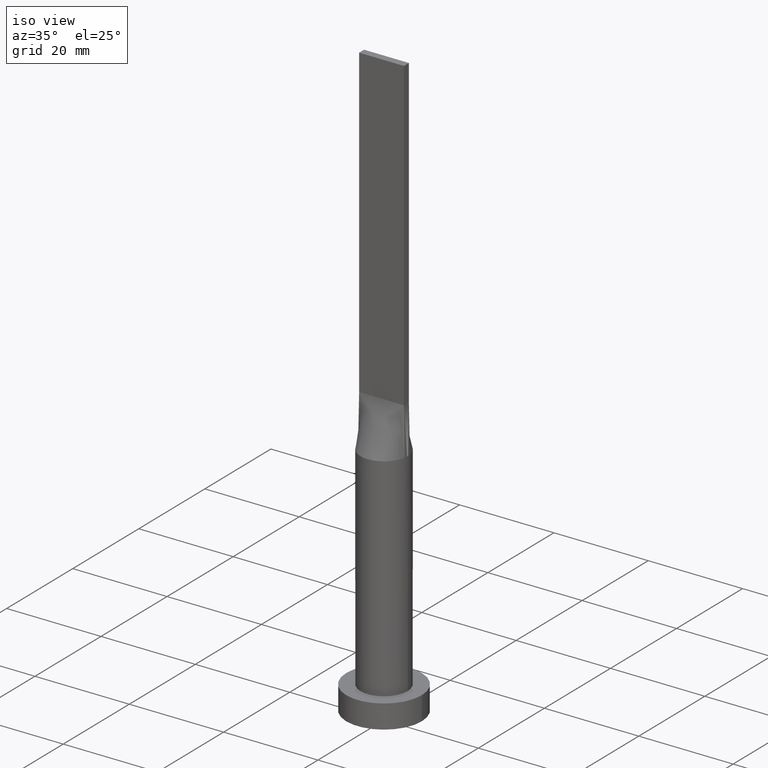
[diagram: clean part render]
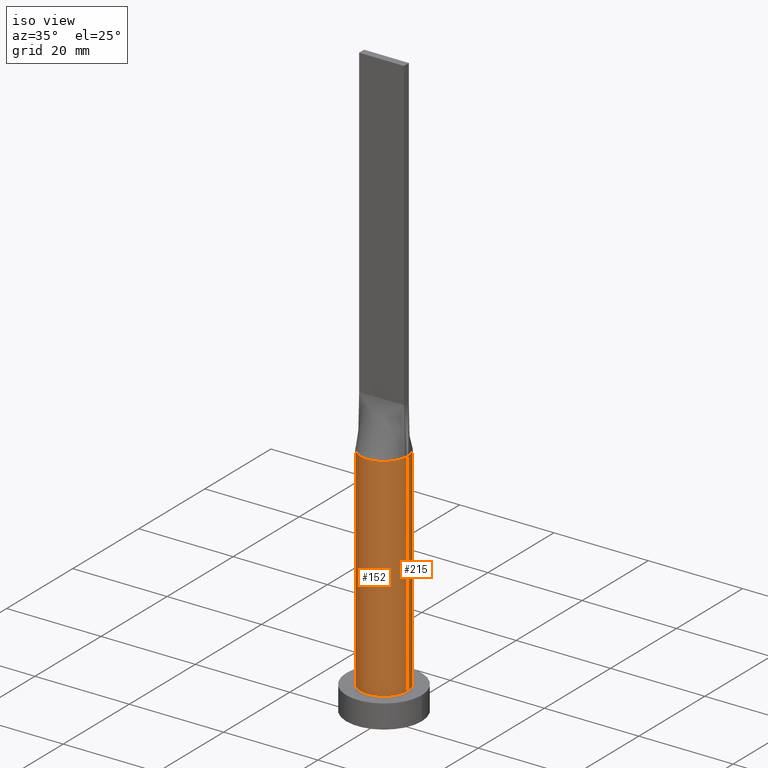
[diagram: same view with one multi-face feature highlighted, each face labeled with its STEP entity id]
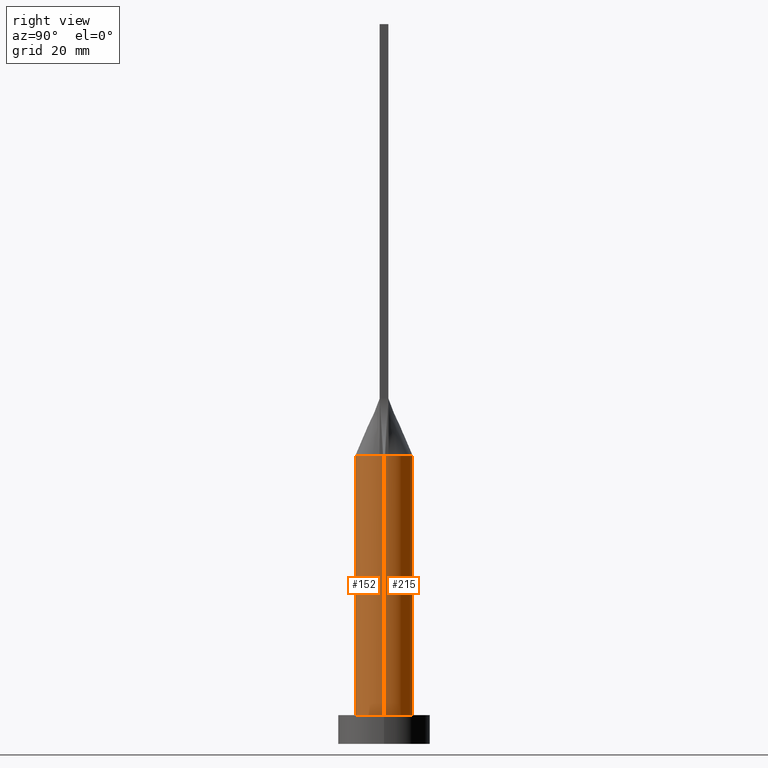
[diagram: same view with one multi-face feature highlighted, each face labeled with its STEP entity id]
A machine part, iso view. The highlighted faces form ONE feature: a constant-radius fillet chain: 2 tangent blend faces with common blend radius 5 mm. The faces share edges in the B-rep.
A second angle (right view) of the same feature is appended — it is thin or edge-on in the first view.
Their STEP definitions:
[1] entity #215 (Cylinder):
#17 = CARTESIAN_POINT ( 'NONE',  ( -0.7119876437238006339, 4.961551549233178982, 49.99999999999999289 ) ) ;
#21 = DIRECTION ( 'NONE',  ( -1.000000000000000000, 0.000000000000000000, 0.000000000000000000 ) ) ;
#23 = CARTESIAN_POINT ( 'NONE',  ( 4.999812818728077701, 1.241126956226958231E-15, 49.99999999999999289 ) ) ;
#24 = CARTESIAN_POINT ( 'NONE',  ( -4.332026455536841070, 2.547220758687717801, 49.99999999999999289 ) ) ;
#45 = B_SPLINE_CURVE_WITH_KNOTS ( 'NONE', 3,
 ( #293, #217, #206, #218, #307, #65, #261, #482, #158, #524, #233, #409, #319, #447, #17, #403, #322, #594, #275, #270, #597, #547, #24, #168, #538, #362 ),
 .UNSPECIFIED., .F., .F.,
 ( 4, 2, 2, 2, 2, 2, 2, 2, 2, 2, 2, 2, 4 ),
 ( 0.000000000000000000, 0.1250000000000001388, 0.2500000000000002220, 0.3125000000000002776, 0.3750000000000002776, 0.4375000000000002776, 0.5000000000000002220, 0.5625000000000002220, 0.6250000000000001110, 0.6875000000000001110, 0.7500000000000001110, 0.8750000000000001110, 1.000000000000000000 ),
 .UNSPECIFIED. ) ;
#61 = VERTEX_POINT ( 'NONE', #184 ) ;
#62 = CIRCLE ( 'NONE', #611, 5.000000000000000000 ) ;
#65 = CARTESIAN_POINT ( 'NONE',  ( 3.404830936252119411, 3.673931880027066388, 50.00000000000000000 ) ) ;
#70 = FACE_OUTER_BOUND ( 'NONE', #471, .T. ) ;
#78 = CARTESIAN_POINT ( 'NONE',  ( 0.000000000000000000, 0.000000000000000000, 49.99999999999999289 ) ) ;
#88 = DIRECTION ( 'NONE',  ( 0.000000000000000000, 0.000000000000000000, 1.000000000000000000 ) ) ;
#96 = CARTESIAN_POINT ( 'NONE',  ( 0.000000000000000000, 0.000000000000000000, 49.99999999999999289 ) ) ;
#100 = VECTOR ( 'NONE', #323, 1000.000000000000000 ) ;
#111 = CARTESIAN_POINT ( 'NONE',  ( 5.000000000000000000, 6.123233995736765296E-16, 5.000000000000000000 ) ) ;
#113 = AXIS2_PLACEMENT_3D ( 'NONE', #451, #272, #21 ) ;
#117 = DIRECTION ( 'NONE',  ( -0.000000000000000000, -0.000000000000000000, -1.000000000000000000 ) ) ;
#142 = DIRECTION ( 'NONE',  ( 1.000000000000000000, 0.000000000000000000, 0.000000000000000000 ) ) ;
#145 = EDGE_CURVE ( 'NONE', #202, #220, #344, .T. ) ;
#146 = ORIENTED_EDGE ( 'NONE', *, *, #361, .T. ) ;
#158 = CARTESIAN_POINT ( 'NONE',  ( 2.353781608410062454, 4.424438117685770777, 49.99999999999999289 ) ) ;
#168 = CARTESIAN_POINT ( 'NONE',  ( -4.753727492665067444, 1.629988260829202007, 50.00000000000000711 ) ) ;
#184 = CARTESIAN_POINT ( 'NONE',  ( -4.938831943662458812, 0.7798155886440080176, 49.99999999999999289 ) ) ;
#185 = VERTEX_POINT ( 'NONE', #467 ) ;
#196 = ORIENTED_EDGE ( 'NONE', *, *, #474, .F. ) ;
#202 = VERTEX_POINT ( 'NONE', #111 ) ;
#206 = CARTESIAN_POINT ( 'NONE',  ( 4.753727492665065668, 1.629988260829201563, 49.99999999999998579 ) ) ;
#215 = ADVANCED_FACE ( 'NONE', ( #70 ), #266, .T. ) ;
#217 = CARTESIAN_POINT ( 'NONE',  ( 4.874625637456157179, 1.186344398896585606, 49.99999999999999289 ) ) ;
#218 = CARTESIAN_POINT ( 'NONE',  ( 4.332026455536839293, 2.547220758687718689, 49.99999999999998579 ) ) ;
#220 = VERTEX_POINT ( 'NONE', #457 ) ;
#233 = CARTESIAN_POINT ( 'NONE',  ( 1.400150253878312823, 4.812847332616943419, 49.99999999999999289 ) ) ;
#252 = ORIENTED_EDGE ( 'NONE', *, *, #369, .F. ) ;
#261 = CARTESIAN_POINT ( 'NONE',  ( 3.168723755431093192, 3.881165404529570040, 49.99999999999999289 ) ) ;
#266 = CYLINDRICAL_SURFACE ( 'NONE', #113, 5.000000000000000000 ) ;
#270 = CARTESIAN_POINT ( 'NONE',  ( -3.168723755431092748, 3.881165404529570484, 49.99999999999997868 ) ) ;
#272 = DIRECTION ( 'NONE',  ( -0.000000000000000000, -0.000000000000000000, -1.000000000000000000 ) ) ;
#274 = CARTESIAN_POINT ( 'NONE',  ( 5.000000000000000000, 6.123233995736765296E-16, 49.99999999999999289 ) ) ;
#275 = CARTESIAN_POINT ( 'NONE',  ( -2.643217737595827455, 4.256483892511438327, 49.99999999999998579 ) ) ;
#293 = CARTESIAN_POINT ( 'NONE',  ( 4.938814826645345768, 0.7798128673650538412, 49.99999999999999289 ) ) ;
#307 = CARTESIAN_POINT ( 'NONE',  ( 4.029217956433126524, 3.021257902548482477, 50.00000000000000000 ) ) ;
#314 = DIRECTION ( 'NONE',  ( 0.000000000000000000, 0.000000000000000000, 1.000000000000000000 ) ) ;
#319 = CARTESIAN_POINT ( 'NONE',  ( 0.3560391241594590972, 5.000000000000001776, 50.00000000000000000 ) ) ;
#322 = CARTESIAN_POINT ( 'NONE',  ( -1.732223102076449806, 4.702695359254402518, 49.99999999999998579 ) ) ;
#323 = DIRECTION ( 'NONE',  ( -0.000000000000000000, -0.000000000000000000, -1.000000000000000000 ) ) ;
#330 = VERTEX_POINT ( 'NONE', #23 ) ;
#339 = CIRCLE ( 'NONE', #522, 5.000000000000000000 ) ;
#344 = CIRCLE ( 'NONE', #579, 5.000000000000000000 ) ;
#353 = LINE ( 'NONE', #589, #357 ) ;
#357 = VECTOR ( 'NONE', #117, 1000.000000000000000 ) ;
#361 = EDGE_CURVE ( 'NONE', #330, #202, #609, .T. ) ;
#362 = CARTESIAN_POINT ( 'NONE',  ( -4.938831943662458812, 0.7798155886440080176, 49.99999999999999289 ) ) ;
#369 = EDGE_CURVE ( 'NONE', #61, #615, #339, .T. ) ;
#370 = CARTESIAN_POINT ( 'NONE',  ( -4.999812818728077701, -1.193032336741890821E-15, 49.99999999999999289 ) ) ;
#381 = CARTESIAN_POINT ( 'NONE',  ( 0.000000000000000000, 0.000000000000000000, 5.000000000000000000 ) ) ;
#389 = DIRECTION ( 'NONE',  ( 1.000000000000000000, 0.000000000000000000, 0.000000000000000000 ) ) ;
#403 = CARTESIAN_POINT ( 'NONE',  ( -1.400150253878312823, 4.812847332616943419, 49.99999999999999289 ) ) ;
#409 = CARTESIAN_POINT ( 'NONE',  ( 0.7119876437238013001, 4.961551549233180758, 49.99999999999999289 ) ) ;
#425 = ORIENTED_EDGE ( 'NONE', *, *, #577, .F. ) ;
#447 = CARTESIAN_POINT ( 'NONE',  ( -0.3560391241594593192, 5.000000000000000000, 50.00000000000000711 ) ) ;
#451 = CARTESIAN_POINT ( 'NONE',  ( 0.000000000000000000, 0.000000000000000000, 49.99999999999999289 ) ) ;
#457 = CARTESIAN_POINT ( 'NONE',  ( -5.000000000000000000, 0.000000000000000000, 5.000000000000000000 ) ) ;
#467 = CARTESIAN_POINT ( 'NONE',  ( 4.938814826645345768, 0.7798128673650538412, 49.99999999999999289 ) ) ;
#471 = EDGE_LOOP ( 'NONE', ( #196, #146, #512, #473, #252, #425 ) ) ;
#473 = ORIENTED_EDGE ( 'NONE', *, *, #536, .F. ) ;
#474 = EDGE_CURVE ( 'NONE', #330, #185, #62, .T. ) ;
#482 = CARTESIAN_POINT ( 'NONE',  ( 2.643217737595826566, 4.256483892511437439, 49.99999999999999289 ) ) ;
#507 = DIRECTION ( 'NONE',  ( 0.000000000000000000, 0.000000000000000000, 1.000000000000000000 ) ) ;
#512 = ORIENTED_EDGE ( 'NONE', *, *, #145, .T. ) ;
#522 = AXIS2_PLACEMENT_3D ( 'NONE', #78, #314, #606 ) ;
#524 = CARTESIAN_POINT ( 'NONE',  ( 1.732223102076450250, 4.702695359254404295, 49.99999999999998579 ) ) ;
#536 = EDGE_CURVE ( 'NONE', #615, #220, #353, .T. ) ;
#538 = CARTESIAN_POINT ( 'NONE',  ( -4.874625637456156291, 1.186344398896586716, 49.99999999999998579 ) ) ;
#547 = CARTESIAN_POINT ( 'NONE',  ( -4.029217956433124748, 3.021257902548482033, 50.00000000000000711 ) ) ;
#577 = EDGE_CURVE ( 'NONE', #185, #61, #45, .T. ) ;
#579 = AXIS2_PLACEMENT_3D ( 'NONE', #381, #507, #142 ) ;
#589 = CARTESIAN_POINT ( 'NONE',  ( -5.000000000000000000, 0.000000000000000000, 49.99999999999999289 ) ) ;
#594 = CARTESIAN_POINT ( 'NONE',  ( -2.353781608410062010, 4.424438117685770777, 49.99999999999998579 ) ) ;
#597 = CARTESIAN_POINT ( 'NONE',  ( -3.404830936252120299, 3.673931880027067720, 50.00000000000000000 ) ) ;
#606 = DIRECTION ( 'NONE',  ( 1.000000000000000000, 0.000000000000000000, 0.000000000000000000 ) ) ;
#609 = LINE ( 'NONE', #274, #100 ) ;
#611 = AXIS2_PLACEMENT_3D ( 'NONE', #96, #88, #389 ) ;
#615 = VERTEX_POINT ( 'NONE', #370 ) ;
[2] entity #152 (Cylinder):
#5 = ORIENTED_EDGE ( 'NONE', *, *, #249, .F. ) ;
#12 = CARTESIAN_POINT ( 'NONE',  ( 0.000000000000000000, 0.000000000000000000, 49.99999999999999289 ) ) ;
#18 = CARTESIAN_POINT ( 'NONE',  ( 0.000000000000000000, 0.000000000000000000, 49.99999999999999289 ) ) ;
#23 = CARTESIAN_POINT ( 'NONE',  ( 4.999812818728077701, 1.241126956226958231E-15, 49.99999999999999289 ) ) ;
#43 = ORIENTED_EDGE ( 'NONE', *, *, #361, .F. ) ;
#69 = CIRCLE ( 'NONE', #557, 5.000000000000000000 ) ;
#71 = CARTESIAN_POINT ( 'NONE',  ( 0.000000000000000000, 0.000000000000000000, 5.000000000000000000 ) ) ;
#75 = CARTESIAN_POINT ( 'NONE',  ( 0.000000000000000000, 0.000000000000000000, 49.99999999999999289 ) ) ;
#87 = CYLINDRICAL_SURFACE ( 'NONE', #581, 5.000000000000000000 ) ;
#89 = DIRECTION ( 'NONE',  ( -1.000000000000000000, 0.000000000000000000, 0.000000000000000000 ) ) ;
#100 = VECTOR ( 'NONE', #323, 1000.000000000000000 ) ;
#111 = CARTESIAN_POINT ( 'NONE',  ( 5.000000000000000000, 6.123233995736765296E-16, 5.000000000000000000 ) ) ;
#117 = DIRECTION ( 'NONE',  ( -0.000000000000000000, -0.000000000000000000, -1.000000000000000000 ) ) ;
#118 = ORIENTED_EDGE ( 'NONE', *, *, #593, .T. ) ;
#125 = DIRECTION ( 'NONE',  ( 1.000000000000000000, 0.000000000000000000, 0.000000000000000000 ) ) ;
#148 = DIRECTION ( 'NONE',  ( 1.000000000000000000, 0.000000000000000000, 0.000000000000000000 ) ) ;
#152 = ADVANCED_FACE ( 'NONE', ( #510 ), #87, .T. ) ;
#191 = ORIENTED_EDGE ( 'NONE', *, *, #292, .F. ) ;
#202 = VERTEX_POINT ( 'NONE', #111 ) ;
#205 = DIRECTION ( 'NONE',  ( 0.000000000000000000, 0.000000000000000000, 1.000000000000000000 ) ) ;
#220 = VERTEX_POINT ( 'NONE', #457 ) ;
#242 = CARTESIAN_POINT ( 'NONE',  ( 4.938833698301754893, -0.7798158709413661738, 49.99999999999999289 ) ) ;
#249 = EDGE_CURVE ( 'NONE', #480, #330, #458, .T. ) ;
#265 = DIRECTION ( 'NONE',  ( 1.000000000000000000, 0.000000000000000000, 0.000000000000000000 ) ) ;
#269 = CARTESIAN_POINT ( 'NONE',  ( 0.000000000000000000, 0.000000000000000000, 49.99999999999999289 ) ) ;
#274 = CARTESIAN_POINT ( 'NONE',  ( 5.000000000000000000, 6.123233995736765296E-16, 49.99999999999999289 ) ) ;
#292 = EDGE_CURVE ( 'NONE', #615, #379, #472, .T. ) ;
#308 = EDGE_CURVE ( 'NONE', #379, #480, #410, .T. ) ;
#323 = DIRECTION ( 'NONE',  ( -0.000000000000000000, -0.000000000000000000, -1.000000000000000000 ) ) ;
#330 = VERTEX_POINT ( 'NONE', #23 ) ;
#336 = DIRECTION ( 'NONE',  ( -0.000000000000000000, -0.000000000000000000, -1.000000000000000000 ) ) ;
#353 = LINE ( 'NONE', #589, #357 ) ;
#357 = VECTOR ( 'NONE', #117, 1000.000000000000000 ) ;
#361 = EDGE_CURVE ( 'NONE', #330, #202, #609, .T. ) ;
#370 = CARTESIAN_POINT ( 'NONE',  ( -4.999812818728077701, -1.193032336741890821E-15, 49.99999999999999289 ) ) ;
#379 = VERTEX_POINT ( 'NONE', #407 ) ;
#400 = AXIS2_PLACEMENT_3D ( 'NONE', #18, #574, #148 ) ;
#407 = CARTESIAN_POINT ( 'NONE',  ( -4.938821632323166178, -0.7798139456827059002, 49.99999999999999289 ) ) ;
#410 = CIRCLE ( 'NONE', #515, 5.000000000000000000 ) ;
#454 = DIRECTION ( 'NONE',  ( 0.000000000000000000, 0.000000000000000000, 1.000000000000000000 ) ) ;
#457 = CARTESIAN_POINT ( 'NONE',  ( -5.000000000000000000, 0.000000000000000000, 5.000000000000000000 ) ) ;
#458 = CIRCLE ( 'NONE', #619, 5.000000000000000000 ) ;
#472 = CIRCLE ( 'NONE', #400, 5.000000000000000000 ) ;
#480 = VERTEX_POINT ( 'NONE', #242 ) ;
#510 = FACE_OUTER_BOUND ( 'NONE', #559, .T. ) ;
#515 = AXIS2_PLACEMENT_3D ( 'NONE', #269, #454, #265 ) ;
#536 = EDGE_CURVE ( 'NONE', #615, #220, #353, .T. ) ;
#557 = AXIS2_PLACEMENT_3D ( 'NONE', #71, #605, #125 ) ;
#559 = EDGE_LOOP ( 'NONE', ( #43, #5, #614, #191, #583, #118 ) ) ;
#574 = DIRECTION ( 'NONE',  ( 0.000000000000000000, 0.000000000000000000, 1.000000000000000000 ) ) ;
#580 = DIRECTION ( 'NONE',  ( 1.000000000000000000, 3.552713678800500929E-15, 0.000000000000000000 ) ) ;
#581 = AXIS2_PLACEMENT_3D ( 'NONE', #75, #336, #89 ) ;
#583 = ORIENTED_EDGE ( 'NONE', *, *, #536, .T. ) ;
#589 = CARTESIAN_POINT ( 'NONE',  ( -5.000000000000000000, 0.000000000000000000, 49.99999999999999289 ) ) ;
#593 = EDGE_CURVE ( 'NONE', #220, #202, #69, .T. ) ;
#605 = DIRECTION ( 'NONE',  ( 0.000000000000000000, 0.000000000000000000, 1.000000000000000000 ) ) ;
#609 = LINE ( 'NONE', #274, #100 ) ;
#614 = ORIENTED_EDGE ( 'NONE', *, *, #308, .F. ) ;
#615 = VERTEX_POINT ( 'NONE', #370 ) ;
#619 = AXIS2_PLACEMENT_3D ( 'NONE', #12, #205, #580 ) ;